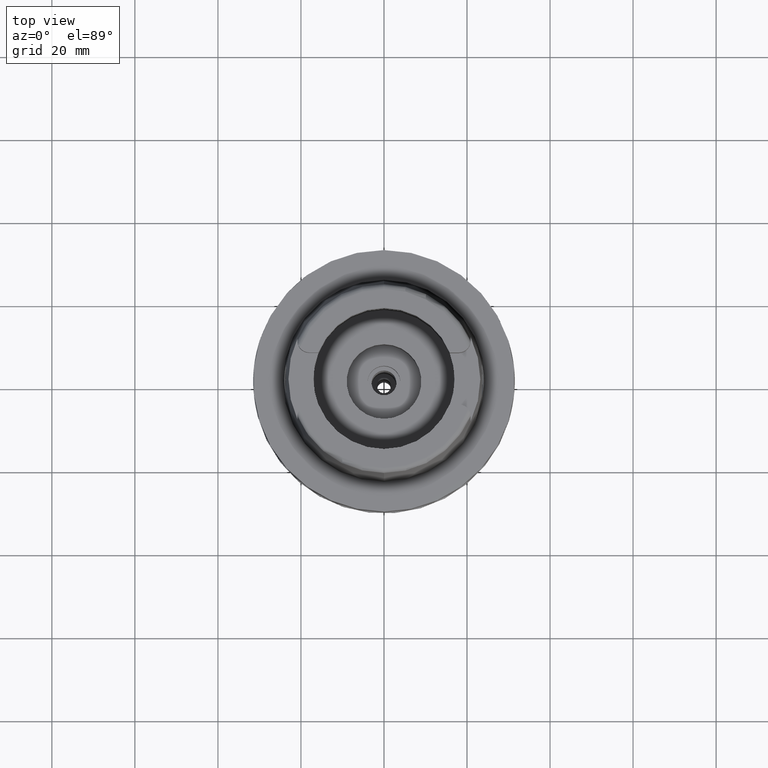
[diagram: clean part render]
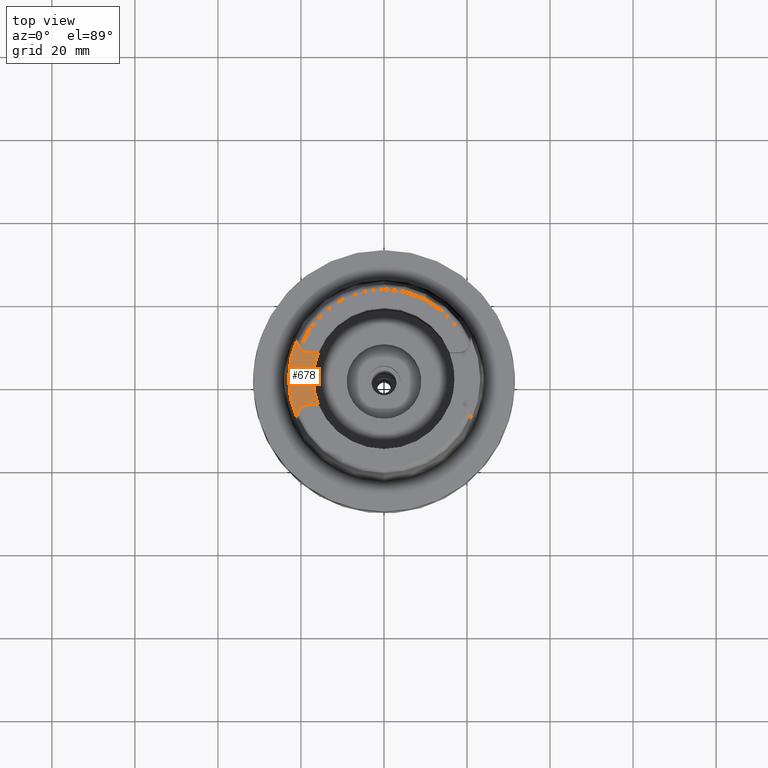
[diagram: same view with one face highlighted and labeled with its STEP entity id]
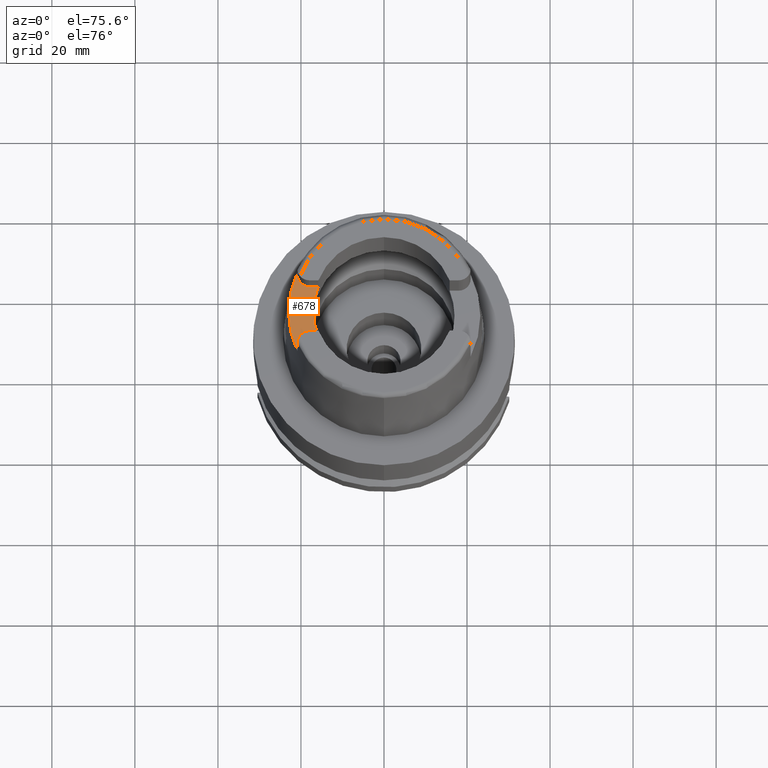
[diagram: same view with one face highlighted and labeled with its STEP entity id]
A machine part, top view. The second image highlights one B-rep face of the part: STEP entity #678.
A second angle (auxiliary view) of the same face is appended — the face is thin or edge-on in the first view.
In plain terms, the highlighted planar face has unit normal (0, 0, 1).
Its self-contained STEP definition (entity closure, byte-faithful):
#36 = CARTESIAN_POINT ( 'NONE',  ( -17.98999999999999844, -6.270000000000000462, 26.00000000000000000 ) ) ;
#148 = EDGE_LOOP ( 'NONE', ( #3561, #2225, #4583, #2590, #2717, #3188, #5475, #164 ) ) ;
#164 = ORIENTED_EDGE ( 'NONE', *, *, #3588, .F. ) ;
#200 = CARTESIAN_POINT ( 'NONE',  ( -20.86999931535000385, 9.702216590559000764, 26.00000000000000000 ) ) ;
#201 = VERTEX_POINT ( 'NONE', #1721 ) ;
#267 = DIRECTION ( 'NONE',  ( -0.9294994374136111848, 0.3688235294118045182, 0.0000000000000000000 ) ) ;
#278 = CARTESIAN_POINT ( 'NONE',  ( -17.98999999999999844, 9.150000000000000355, 26.00000000000000000 ) ) ;
#364 = CARTESIAN_POINT ( 'NONE',  ( 0.0000000000000000000, 1.413609354011999823E-14, 26.00000000000000000 ) ) ;
#635 = CARTESIAN_POINT ( 'NONE',  ( -17.98999999999999844, 6.270000000000000462, 26.00000000000000000 ) ) ;
#678 = ADVANCED_FACE ( 'NONE', ( #3300 ), #3222, .T. ) ;
#689 = CARTESIAN_POINT ( 'NONE',  ( 0.0000000000000000000, 1.707341335030999953E-14, 26.00000000000000000 ) ) ;
#725 = CARTESIAN_POINT ( 'NONE',  ( -20.87000000000000099, -9.150000000000000355, 26.00000000000000000 ) ) ;
#814 = LINE ( 'NONE', #5007, #1367 ) ;
#965 = CARTESIAN_POINT ( 'NONE',  ( -20.87000000000000099, 9.702213322398998585, 26.00000000000000000 ) ) ;
#1005 = CARTESIAN_POINT ( 'NONE',  ( -20.87000294707000236, -9.702199254595999633, 26.00000000000000000 ) ) ;
#1143 = EDGE_CURVE ( 'NONE', #1214, #5409, #2428, .T. ) ;
#1214 = VERTEX_POINT ( 'NONE', #36 ) ;
#1367 = VECTOR ( 'NONE', #5413, 999.9999999999998863 ) ;
#1444 = CIRCLE ( 'NONE', #5454, 23.01499170873999134 ) ;
#1472 = EDGE_CURVE ( 'NONE', #5071, #201, #2744, .T. ) ;
#1539 = DIRECTION ( 'NONE',  ( 1.000000000000000000, 8.684914379406000351E-14, 0.0000000000000000000 ) ) ;
#1563 = LINE ( 'NONE', #3261, #4932 ) ;
#1577 = EDGE_CURVE ( 'NONE', #5409, #4802, #814, .T. ) ;
#1633 = CARTESIAN_POINT ( 'NONE',  ( -15.80149043602999903, -6.270000000000000462, 26.00000000000000000 ) ) ;
#1654 = CARTESIAN_POINT ( 'NONE',  ( -17.98999999999999844, 6.270000000000000462, 26.00000000000000000 ) ) ;
#1721 = CARTESIAN_POINT ( 'NONE',  ( -15.80149043602999903, 6.270000000000000462, 26.00000000000000000 ) ) ;
#1780 = VERTEX_POINT ( 'NONE', #1633 ) ;
#1974 = AXIS2_PLACEMENT_3D ( 'NONE', #3673, #4570, #5019 ) ;
#2036 = DIRECTION ( 'NONE',  ( -0.9068002397791221636, -0.4215605829967106200, 0.0000000000000000000 ) ) ;
#2225 = ORIENTED_EDGE ( 'NONE', *, *, #4387, .F. ) ;
#2293 = CARTESIAN_POINT ( 'NONE',  ( -17.98999999999999844, -9.150000000000000355, 26.00000000000000000 ) ) ;
#2321 = DIRECTION ( 'NONE',  ( 0.0000000000000000000, 0.0000000000000000000, 1.000000000000000000 ) ) ;
#2414 = AXIS2_PLACEMENT_3D ( 'NONE', #689, #4095, #267 ) ;
#2428 = CIRCLE ( 'NONE', #5178, 2.880000000000000782 ) ;
#2479 = EDGE_CURVE ( 'NONE', #1780, #1214, #1563, .T. ) ;
#2513 = VERTEX_POINT ( 'NONE', #965 ) ;
#2590 = ORIENTED_EDGE ( 'NONE', *, *, #4118, .F. ) ;
#2717 = ORIENTED_EDGE ( 'NONE', *, *, #1577, .F. ) ;
#2742 = VERTEX_POINT ( 'NONE', #5398 ) ;
#2744 = LINE ( 'NONE', #635, #4288 ) ;
#2807 = DIRECTION ( 'NONE',  ( -1.000000000000000000, 0.0000000000000000000, 0.0000000000000000000 ) ) ;
#3144 = CIRCLE ( 'NONE', #3500, 2.880000000000000782 ) ;
#3188 = ORIENTED_EDGE ( 'NONE', *, *, #1143, .F. ) ;
#3222 = PLANE ( 'NONE',  #1974 ) ;
#3261 = CARTESIAN_POINT ( 'NONE',  ( -15.80149043602999903, -6.270000000000000462, 26.00000000000000000 ) ) ;
#3300 = FACE_OUTER_BOUND ( 'NONE', #148, .T. ) ;
#3500 = AXIS2_PLACEMENT_3D ( 'NONE', #278, #4424, #2807 ) ;
#3561 = ORIENTED_EDGE ( 'NONE', *, *, #1472, .F. ) ;
#3588 = EDGE_CURVE ( 'NONE', #201, #1780, #4192, .T. ) ;
#3614 = DIRECTION ( 'NONE',  ( 0.0000000000000000000, 1.000000000000000000, 0.0000000000000000000 ) ) ;
#3673 = CARTESIAN_POINT ( 'NONE',  ( 0.0000000000000000000, 0.0000000000000000000, 26.00000000000000000 ) ) ;
#3681 = VECTOR ( 'NONE', #4737, 999.9999999999998863 ) ;
#4013 = EDGE_CURVE ( 'NONE', #2513, #2742, #4377, .T. ) ;
#4095 = DIRECTION ( 'NONE',  ( 0.0000000000000000000, 0.0000000000000000000, 1.000000000000000000 ) ) ;
#4099 = DIRECTION ( 'NONE',  ( -1.000000000000000000, 8.603746955300000159E-14, 0.0000000000000000000 ) ) ;
#4118 = EDGE_CURVE ( 'NONE', #4802, #2513, #1444, .T. ) ;
#4192 = CIRCLE ( 'NONE', #2414, 17.00000000000000000 ) ;
#4263 = DIRECTION ( 'NONE',  ( 0.0000000000000000000, 0.0000000000000000000, -1.000000000000000000 ) ) ;
#4288 = VECTOR ( 'NONE', #1539, 1000.000000000000000 ) ;
#4377 = LINE ( 'NONE', #200, #3681 ) ;
#4387 = EDGE_CURVE ( 'NONE', #2742, #5071, #3144, .T. ) ;
#4424 = DIRECTION ( 'NONE',  ( 0.0000000000000000000, 0.0000000000000000000, 1.000000000000000000 ) ) ;
#4570 = DIRECTION ( 'NONE',  ( 0.0000000000000000000, 0.0000000000000000000, 1.000000000000000000 ) ) ;
#4583 = ORIENTED_EDGE ( 'NONE', *, *, #4013, .F. ) ;
#4737 = DIRECTION ( 'NONE',  ( -1.239818828375039168E-06, -0.9999999999992315036, 7.076906260135215429E-14 ) ) ;
#4802 = VERTEX_POINT ( 'NONE', #1005 ) ;
#4932 = VECTOR ( 'NONE', #4099, 1000.000000000000000 ) ;
#5007 = CARTESIAN_POINT ( 'NONE',  ( -20.87000000000000099, -9.150000000000000355, 26.00000000000000000 ) ) ;
#5019 = DIRECTION ( 'NONE',  ( 1.000000000000000000, 0.0000000000000000000, 0.0000000000000000000 ) ) ;
#5071 = VERTEX_POINT ( 'NONE', #1654 ) ;
#5178 = AXIS2_PLACEMENT_3D ( 'NONE', #2293, #2321, #3614 ) ;
#5398 = CARTESIAN_POINT ( 'NONE',  ( -20.87000000000000099, 9.150000000000000355, 26.00000000000000000 ) ) ;
#5409 = VERTEX_POINT ( 'NONE', #725 ) ;
#5413 = DIRECTION ( 'NONE',  ( -5.336963691622777165E-06, -0.9999999999857585031, -7.077128435252706395E-14 ) ) ;
#5454 = AXIS2_PLACEMENT_3D ( 'NONE', #364, #4263, #2036 ) ;
#5475 = ORIENTED_EDGE ( 'NONE', *, *, #2479, .F. ) ;